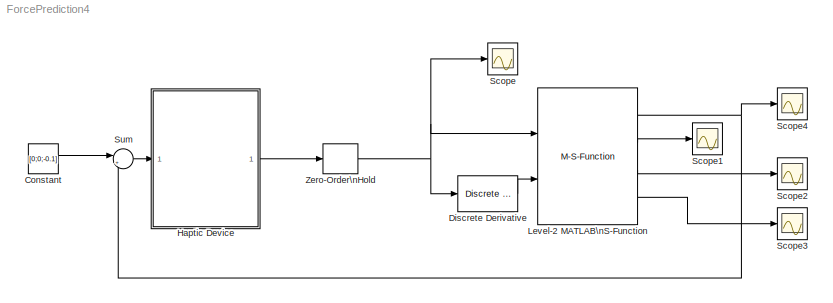
MODEL ForcePrediction4
KIND model
BLOCK [Constant] Constant
  SID = 1
  Value = [0;0;-0.1]
BLOCK [Reference] Discrete Derivative  REF=simulink/Discrete/Discrete Derivative
  DoSatur = off
  ICPrevScaledInput = v0
  InputProcessing = Inherited
  LockScale = off
  OutDataType = fixdt(1, 16)
  OutDataTypeStr = Inherit: Inherit via internal rule
  OutMax = []
  OutMin = []
  OutScaling = 2^-10
  OutputDataTypeScalingMode = Inherit via internal rule
  Ports = [1, 1]
  RndMeth = Floor
  SID = 2
  SourceBlock = simulink/Discrete/Discrete Derivative
  SourceType = Discrete Derivative
  gainval = 1.0
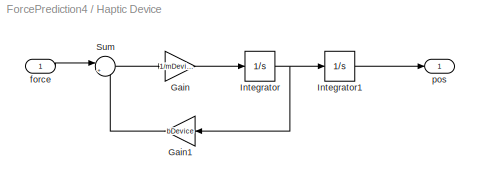
BLOCK [SubSystem] Haptic Device
  Ports = [1, 1]
  RequestExecContextInheritance = off
  SID = 3
  Variant = off
BLOCK [Gain] Haptic Device/Gain
  Gain = 1/mDevice
  OutDataTypeStr = Inherit: Inherit via internal rule
  ParamDataTypeStr = Inherit: Inherit via internal rule
  SID = 5
  SaturateOnIntegerOverflow = off
BLOCK [Gain] Haptic Device/Gain1
  Gain = bDevice
  OutDataTypeStr = Inherit: Inherit via internal rule
  ParamDataTypeStr = Inherit: Inherit via internal rule
  SID = 6
  SaturateOnIntegerOverflow = off
BLOCK [Integrator] Haptic Device/Integrator
  InitialCondition = v0
  Ports = [1, 1]
  SID = 7
BLOCK [Integrator] Haptic Device/Integrator1
  InitialCondition = p0
  Ports = [1, 1]
  SID = 8
BLOCK [Sum] Haptic Device/Sum
  IconShape = round
  InputSameDT = off
  Inputs = |+-
  OutDataTypeStr = Inherit: Inherit via internal rule
  Ports = [2, 1]
  SID = 9
  SaturateOnIntegerOverflow = off
BLOCK [Inport] Haptic Device/force
  IconDisplay = Port number
  SID = 4
BLOCK [Outport] Haptic Device/pos
  IconDisplay = Port number
  SID = 10
BLOCK [M-S-Function] Level-2 MATLAB\nS-Function
  FunctionName = VirtualEnvironment4
  Parameters = kBall, bBall, rBall, cBall, dof, tsampling, p0, v0
  Ports = [2, 4]
  SID = 11
BLOCK [Scope] Scope
  Ports = [1]
  SID = 13
  ScopeSpecificationString = Simulink.scopes.TimeScopeBlockCfg('CurrentConfiguration', extmgr.ConfigurationSet(extmgr.Configuration('Core','General UI',true),extmgr.Configuration('Core','Source UI',true),extmgr.Configuration('Sources','WiredSimulink',true,'DataLoggingVariableName','ScopeData1'),extmgr.Configuration('Visuals','Time Domain',true,'SerializedDisplays',{struct('MinYLimReal','0.09643','MaxYLimReal','0.10338','YLabe...<+1485ch>
BLOCK [Scope] Scope1
  Ports = [1]
  SID = 14
  ScopeSpecificationString = Simulink.scopes.TimeScopeBlockCfg('CurrentConfiguration', extmgr.ConfigurationSet(extmgr.Configuration('Core','General UI',true),extmgr.Configuration('Core','Source UI',true),extmgr.Configuration('Sources','WiredSimulink',true,'DataLoggingVariableName','ScopeData2','DataLoggingSaveFormat','Array','DataLoggingDecimation','1','DataLoggingDecimateData',true),extmgr.Configuration('Visuals','Time Domai...<+1525ch>
BLOCK [Scope] Scope2
  Ports = [1]
  SID = 15
  ScopeSpecificationString = Simulink.scopes.TimeScopeBlockCfg('CurrentConfiguration', extmgr.ConfigurationSet(extmgr.Configuration('Core','General UI',true),extmgr.Configuration('Core','Source UI',true),extmgr.Configuration('Sources','WiredSimulink',true,'DataLoggingVariableName','ScopeData3','DataLoggingSaveFormat','Array','DataLoggingDecimation','1','DataLoggingDecimateData',true),extmgr.Configuration('Visuals','Time Domai...<+1477ch>
BLOCK [Scope] Scope3
  Ports = [1]
  SID = 19
  ScopeSpecificationString = Simulink.scopes.TimeScopeBlockCfg('CurrentConfiguration', extmgr.ConfigurationSet(extmgr.Configuration('Core','General UI',true),extmgr.Configuration('Core','Source UI',true),extmgr.Configuration('Sources','WiredSimulink',true,'DataLoggingVariableName','ScopeData4'),extmgr.Configuration('Visuals','Time Domain',true,'SerializedDisplays',{struct('MinYLimReal','-0.00022','MaxYLimReal','0.00197','YLab...<+1459ch>
BLOCK [Scope] Scope4
  Ports = [1]
  SID = 16
  ScopeSpecificationString = Simulink.scopes.TimeScopeBlockCfg('CurrentConfiguration', extmgr.ConfigurationSet(extmgr.Configuration('Core','General UI',true),extmgr.Configuration('Core','Source UI',true),extmgr.Configuration('Sources','WiredSimulink',true),extmgr.Configuration('Visuals','Time Domain',true,'SerializedDisplays',{struct('MinYLimReal','-1.55985','MaxYLimReal','10.95629','YLabelReal','','MinYLimMag','0.00000','Max...<+1490ch>
BLOCK [Sum] Sum
  IconShape = round
  InputSameDT = off
  Inputs = |++
  OutDataTypeStr = Inherit: Inherit via internal rule
  Ports = [2, 1]
  SID = 17
  SaturateOnIntegerOverflow = off
BLOCK [ZeroOrderHold] Zero-Order\nHold
  SID = 18
  SampleTime = tsampling
LINE Constant:1 -> Sum:1
LINE Discrete Derivative:1 -> Level-2 MATLAB\nS-Function:2
LINE Haptic Device/Gain1:1 -> Haptic Device/Sum:2
LINE Haptic Device/Gain:1 -> Haptic Device/Integrator:1
LINE Haptic Device/Integrator1:1 -> Haptic Device/pos:1
NET Haptic Device/Integrator:1 -> Haptic Device/Gain1:1, Haptic Device/Integrator1:1
LINE Haptic Device/Sum:1 -> Haptic Device/Gain:1
LINE Haptic Device/force:1 -> Haptic Device/Sum:1
LINE Haptic Device:1 -> Zero-Order\nHold:1
NET Level-2 MATLAB\nS-Function:1 -> Scope4:1, Sum:2
LINE Level-2 MATLAB\nS-Function:2 -> Scope1:1
LINE Level-2 MATLAB\nS-Function:3 -> Scope2:1
LINE Level-2 MATLAB\nS-Function:4 -> Scope3:1
LINE Sum:1 -> Haptic Device:1
NET Zero-Order\nHold:1 -> Discrete Derivative:1, Level-2 MATLAB\nS-Function:1, Scope:1
note: NET lines group one-source signal fan-out (src -> all destinations, sorted); 1:1 wires keep LINE
